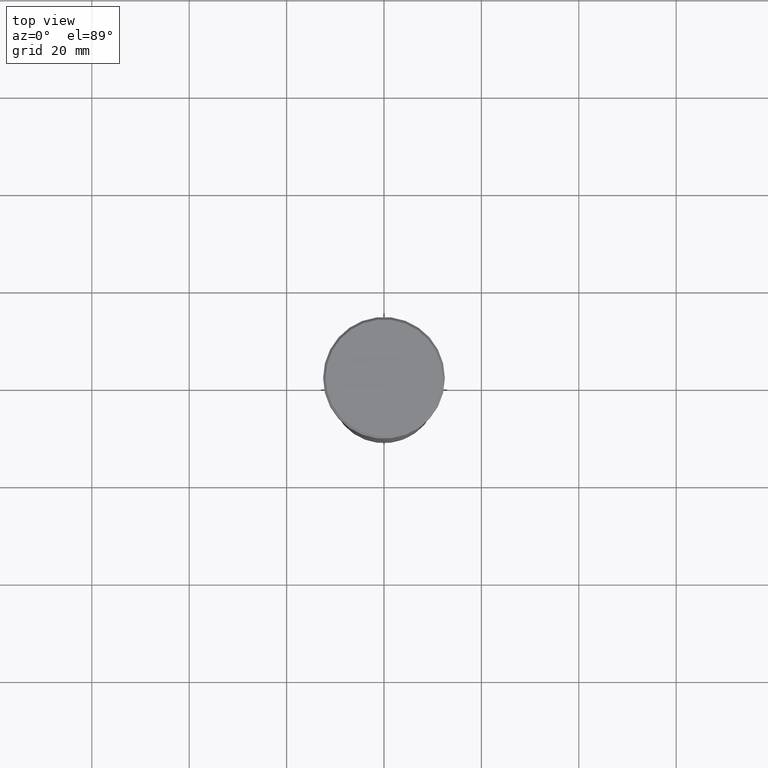
[diagram: clean part render]
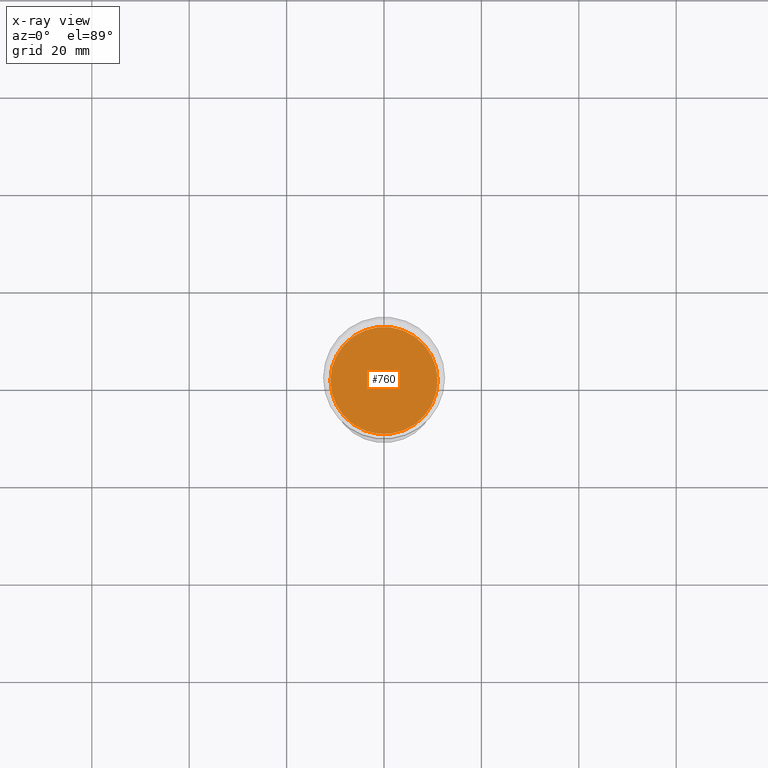
[diagram: x-ray — body ghosted, one internal face saturated and labeled with its STEP entity id]
A machine part, top view, then the same camera in x-ray: the body is ghosted and one INTERNAL B-rep face — a face not visible from any outside direction — is saturated and labeled: STEP entity #760.
In plain terms, the highlighted planar face has unit normal (0, 0, -1).
Its self-contained STEP definition (entity closure, byte-faithful):
#3 = VERTEX_POINT ( 'NONE', #798 ) ;
#9 = AXIS2_PLACEMENT_3D ( 'NONE', #1129, #1038, #252 ) ;
#69 = DIRECTION ( 'NONE',  ( -1.000000000000000000, 0.000000000000000000, -0.000000000000000000 ) ) ;
#117 = AXIS2_PLACEMENT_3D ( 'NONE', #1066, #593, #69 ) ;
#127 = CARTESIAN_POINT ( 'NONE',  ( 0.000000000000000000, 0.000000000000000000, -33.00000000000000000 ) ) ;
#141 = DIRECTION ( 'NONE',  ( 0.000000000000000000, 0.000000000000000000, -1.000000000000000000 ) ) ;
#174 = EDGE_LOOP ( 'NONE', ( #1031, #962 ) ) ;
#183 = VERTEX_POINT ( 'NONE', #940 ) ;
#252 = DIRECTION ( 'NONE',  ( -1.000000000000000000, 0.000000000000000000, 0.000000000000000000 ) ) ;
#391 = DIRECTION ( 'NONE',  ( -1.000000000000000000, 0.000000000000000000, 0.000000000000000000 ) ) ;
#593 = DIRECTION ( 'NONE',  ( 0.000000000000000000, 0.000000000000000000, -1.000000000000000000 ) ) ;
#646 = EDGE_CURVE ( 'NONE', #3, #183, #949, .T. ) ;
#662 = FACE_OUTER_BOUND ( 'NONE', #174, .T. ) ;
#760 = ADVANCED_FACE ( 'NONE', ( #662 ), #870, .T. ) ;
#798 = CARTESIAN_POINT ( 'NONE',  ( -11.00000000000000000, 1.347111479062088405E-15, -33.00000000000000000 ) ) ;
#816 = EDGE_CURVE ( 'NONE', #183, #3, #970, .T. ) ;
#870 = PLANE ( 'NONE',  #117 ) ;
#940 = CARTESIAN_POINT ( 'NONE',  ( 11.00000000000000000, 0.000000000000000000, -33.00000000000000000 ) ) ;
#949 = CIRCLE ( 'NONE', #1139, 11.00000000000000000 ) ;
#962 = ORIENTED_EDGE ( 'NONE', *, *, #646, .T. ) ;
#970 = CIRCLE ( 'NONE', #9, 11.00000000000000000 ) ;
#1031 = ORIENTED_EDGE ( 'NONE', *, *, #816, .T. ) ;
#1038 = DIRECTION ( 'NONE',  ( 0.000000000000000000, 0.000000000000000000, -1.000000000000000000 ) ) ;
#1066 = CARTESIAN_POINT ( 'NONE',  ( 0.000000000000000000, 0.000000000000000000, -33.00000000000000000 ) ) ;
#1129 = CARTESIAN_POINT ( 'NONE',  ( 0.000000000000000000, 0.000000000000000000, -33.00000000000000000 ) ) ;
#1139 = AXIS2_PLACEMENT_3D ( 'NONE', #127, #141, #391 ) ;